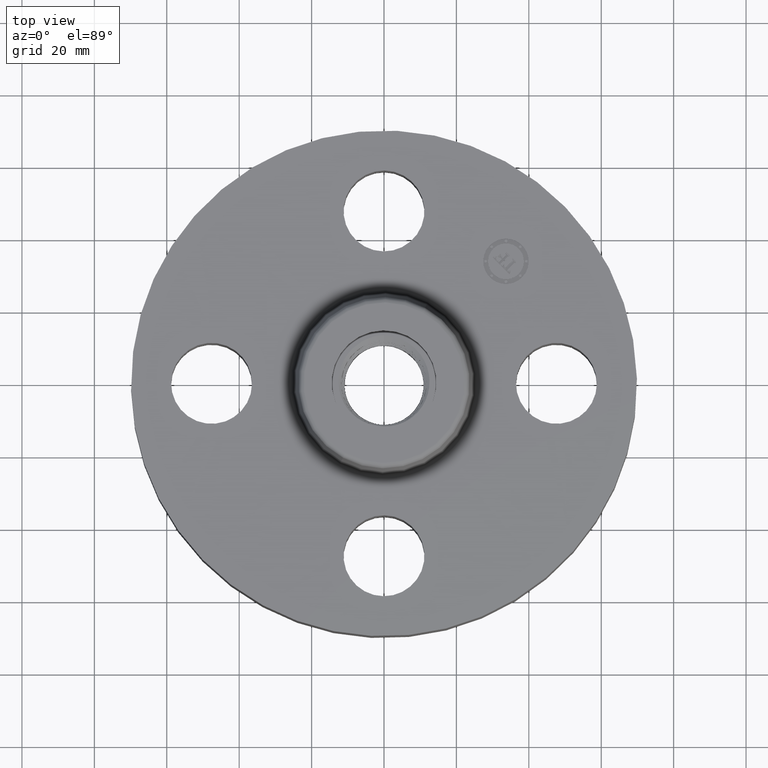
[diagram: clean part render]
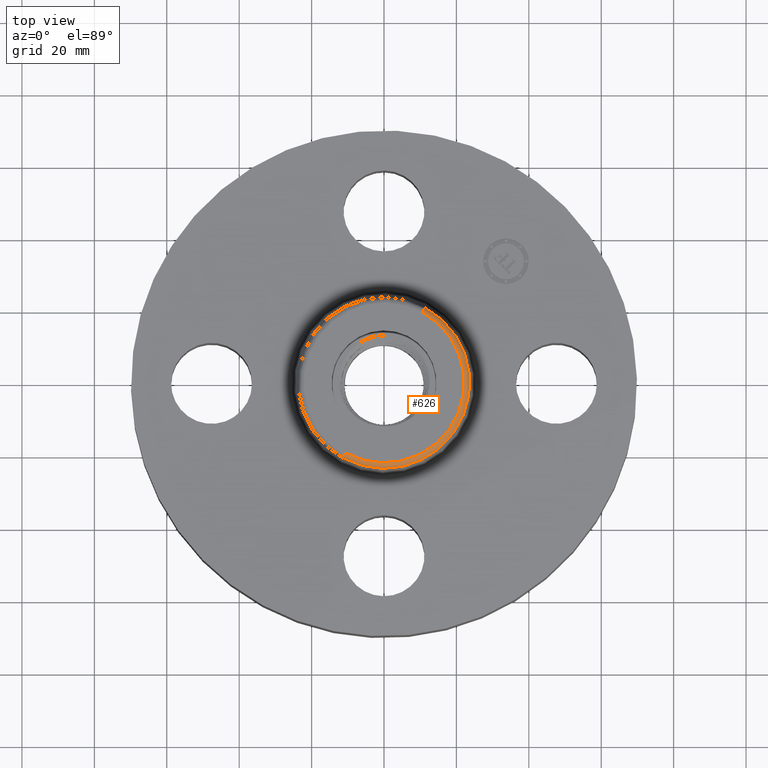
[diagram: same view with one face highlighted and labeled with its STEP entity id]
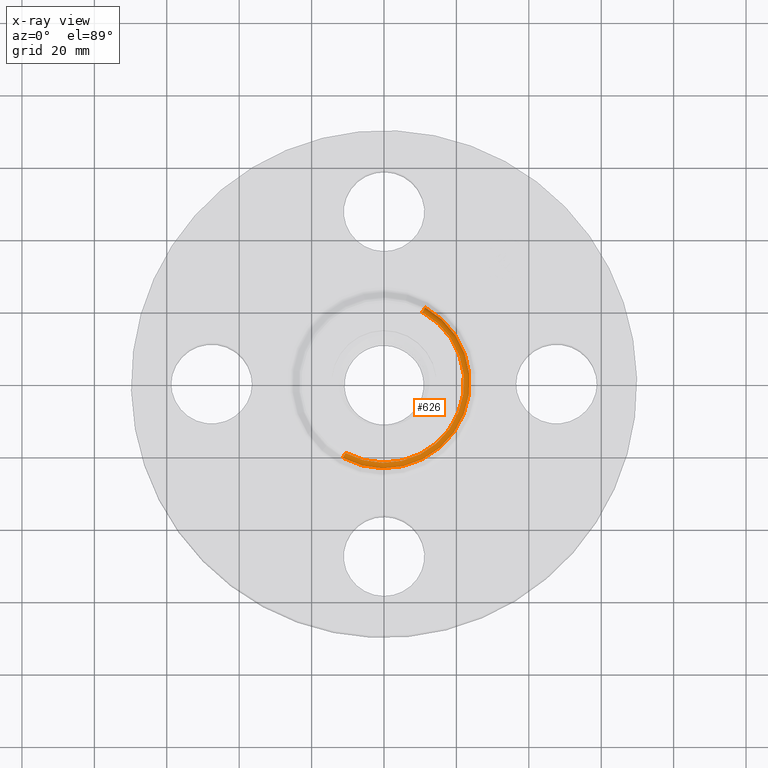
[diagram: x-ray of the same camera — body ghosted, the highlighted face saturated]
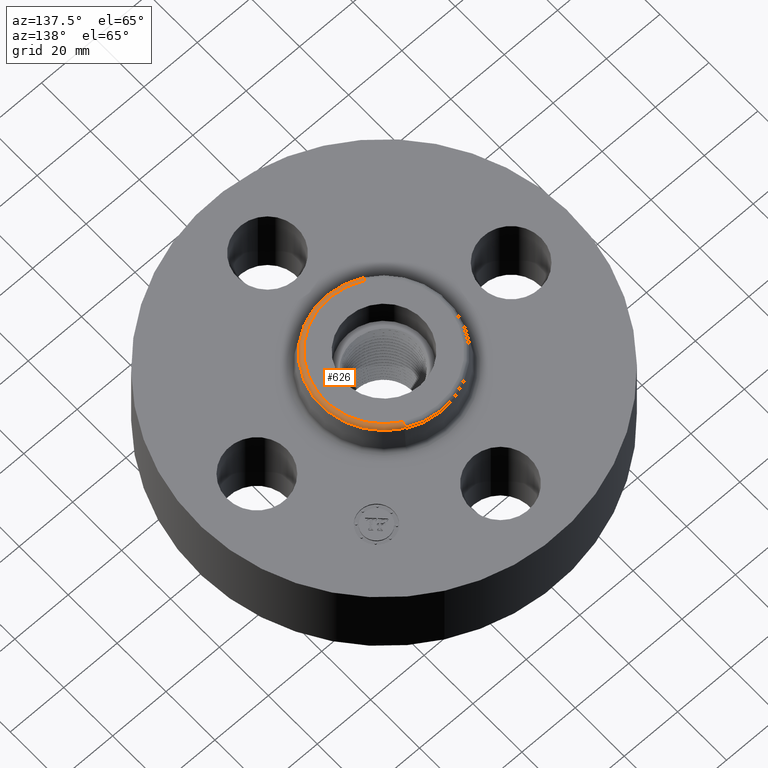
[diagram: same view with one face highlighted and labeled with its STEP entity id]
A machine part, top view. The second image highlights one B-rep face of the part: STEP entity #626.
The next image is the same camera in x-ray: the body ghosted, the highlighted face saturated — about 0% of this face is hidden behind the body in this view.
A second angle (auxiliary view) of the same face is appended — the face is thin or edge-on in the first view.
In plain terms, the highlighted toroidal blend (fillet) surface has major radius 22.1506 mm and minor (blend) radius 1.524 mm.
Its self-contained STEP definition (entity closure, byte-faithful):
#567=AXIS2_PLACEMENT_3D('Circle Axis2P3D',#565,#566,$) ;
#599=AXIS2_PLACEMENT_3D('Torus Axis2P3D',#596,#597,#598) ;
#603=AXIS2_PLACEMENT_3D('Circle Axis2P3D',#601,#602,$) ;
#610=AXIS2_PLACEMENT_3D('Circle Axis2P3D',#608,#609,$) ;
#617=AXIS2_PLACEMENT_3D('Circle Axis2P3D',#615,#616,$) ;
#562=CARTESIAN_POINT('Vertex',(0.446421220907,0.817168563582,1.64041889067)) ;
#565=CARTESIAN_POINT('Axis2P3D Location',(0.,0.,1.64041889067)) ;
#569=CARTESIAN_POINT('Vertex',(-0.446421220907,-0.817168563582,1.64041889067)) ;
#596=CARTESIAN_POINT('Axis2P3D Location',(0.,0.,1.63000000001)) ;
#601=CARTESIAN_POINT('Axis2P3D Location',(0.418092701662,0.76531355693,1.63000000001)) ;
#605=CARTESIAN_POINT('Vertex',(0.418092701662,0.76531355693,1.69000000001)) ;
#608=CARTESIAN_POINT('Axis2P3D Location',(0.,0.,1.69000000001)) ;
#612=CARTESIAN_POINT('Vertex',(-0.418092701662,-0.76531355693,1.69000000001)) ;
#615=CARTESIAN_POINT('Axis2P3D Location',(-0.418092701662,-0.76531355693,1.63000000001)) ;
#566=DIRECTION('Axis2P3D Direction',(0.,0.,-0.0393700787402)) ;
#597=DIRECTION('Axis2P3D Direction',(0.,0.,-0.0393700787402)) ;
#598=DIRECTION('Axis2P3D XDirection',(-0.0188750212049,-0.0345504945626,0.)) ;
#602=DIRECTION('Axis2P3D Direction',(-0.0345504945626,0.0188750212049,0.)) ;
#609=DIRECTION('Axis2P3D Direction',(0.,0.,-0.0393700787402)) ;
#616=DIRECTION('Axis2P3D Direction',(0.0345504945626,-0.0188750212049,0.)) ;
#621=ORIENTED_EDGE('',*,*,#571,.F.) ;
#622=ORIENTED_EDGE('',*,*,#607,.T.) ;
#623=ORIENTED_EDGE('',*,*,#614,.T.) ;
#624=ORIENTED_EDGE('',*,*,#619,.F.) ;
#626=ADVANCED_FACE('PartBody',(#625),#600,.T.) ;
#568=CIRCLE('generated circle',#567,0.931158615802) ;
#604=CIRCLE('generated circle',#603,0.0600000000002) ;
#611=CIRCLE('generated circle',#610,0.872070150621) ;
#618=CIRCLE('generated circle',#617,0.0600000000002) ;
#600=TOROIDAL_SURFACE('homeo Torus',#599,0.872070150621,0.0600000000002) ;
#571=EDGE_CURVE('',#563,#570,#568,.T.) ;
#607=EDGE_CURVE('',#563,#606,#604,.F.) ;
#614=EDGE_CURVE('',#606,#613,#611,.T.) ;
#619=EDGE_CURVE('',#570,#613,#618,.F.) ;
#620=EDGE_LOOP('',(#621,#622,#623,#624)) ;
#625=FACE_OUTER_BOUND('',#620,.T.) ;
#563=VERTEX_POINT('',#562) ;
#570=VERTEX_POINT('',#569) ;
#606=VERTEX_POINT('',#605) ;
#613=VERTEX_POINT('',#612) ;